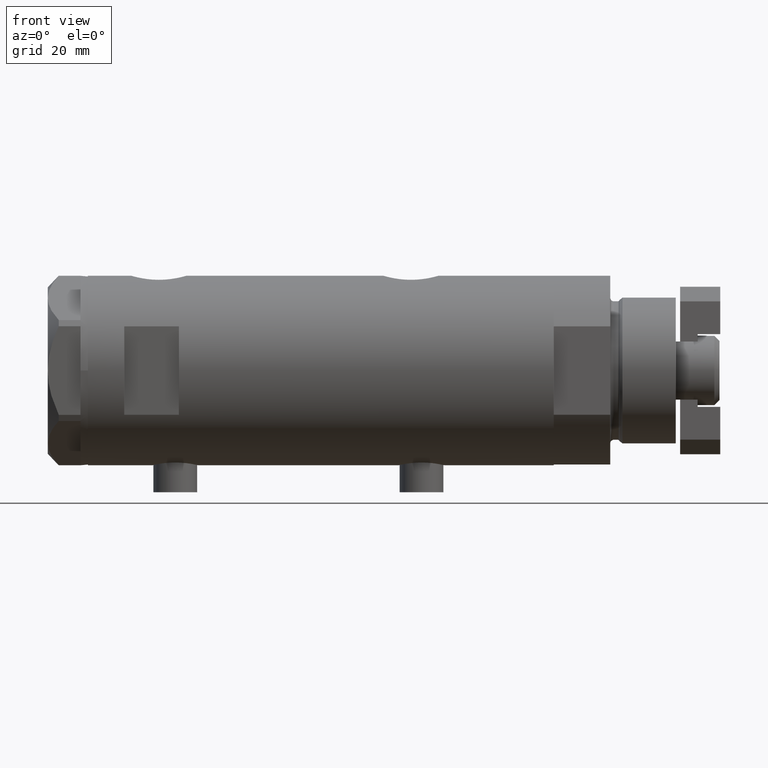
[diagram: clean part render]
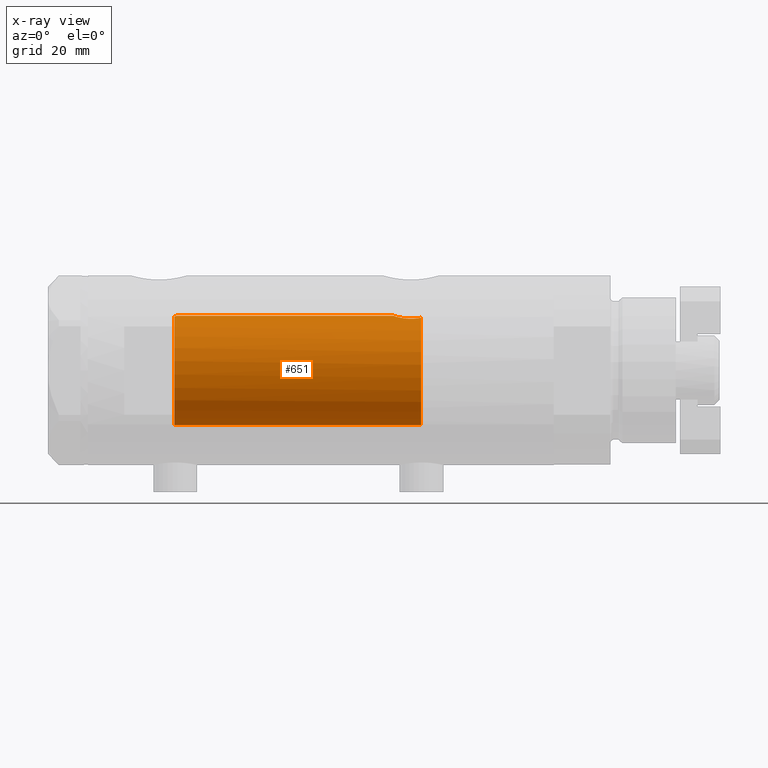
[diagram: x-ray — body ghosted, one internal face saturated and labeled with its STEP entity id]
A machine part, front view, then the same camera in x-ray: the body is ghosted and one INTERNAL B-rep face — a face not visible from any outside direction — is saturated and labeled: STEP entity #651.
In plain terms, the highlighted cylindrical surface (partial cylindrical patch) has radius 15 mm, axis along (1, 0, -0).
Its self-contained STEP definition (entity closure, byte-faithful):
#2 = CARTESIAN_POINT ( 'NONE',  ( 14.25856516724843814, -4.658255869285517825, -26.17044016644936733 ) ) ;
#73 = ORIENTED_EDGE ( 'NONE', *, *, #1847, .F. ) ;
#113 = CARTESIAN_POINT ( 'NONE',  ( 0.000000000000000000, 0.000000000000000000, 40.15000000000000568 ) ) ;
#173 = CARTESIAN_POINT ( 'NONE',  ( 15.00000000000000000, 0.000000000000000000, 39.58500000000000085 ) ) ;
#408 = CARTESIAN_POINT ( 'NONE',  ( 14.23846660849503465, -4.718934182878723682, -25.95401121469808459 ) ) ;
#491 = CARTESIAN_POINT ( 'NONE',  ( 14.99508877558422704, -0.4434836953032585405, -19.90007684727664028 ) ) ;
#517 = DIRECTION ( 'NONE',  ( 0.000000000000000000, 0.000000000000000000, 1.000000000000000000 ) ) ;
#651 = ADVANCED_FACE ( 'NONE', ( #4288 ), #1280, .F. ) ;
#802 = CARTESIAN_POINT ( 'NONE',  ( 14.42796883436190569, -4.108435602805831977, -22.10726922759031510 ) ) ;
#848 = CARTESIAN_POINT ( 'NONE',  ( 0.000000000000000000, 0.000000000000000000, 63.95000000000000995 ) ) ;
#858 = CARTESIAN_POINT ( 'NONE',  ( 14.72015646623405871, -2.909233045280604113, -20.82572079632733519 ) ) ;
#887 = DIRECTION ( 'NONE',  ( -0.000000000000000000, -0.000000000000000000, -1.000000000000000000 ) ) ;
#969 = CARTESIAN_POINT ( 'NONE',  ( 14.92029983160078466, -1.555365312915176323, 39.83609703141412695 ) ) ;
#1058 = ORIENTED_EDGE ( 'NONE', *, *, #3585, .T. ) ;
#1083 = B_SPLINE_CURVE_WITH_KNOTS ( 'NONE', 3,
 ( #173, #3105, #3588, #3639, #969, #1460, #2314, #4034 ),
 .UNSPECIFIED., .F., .F.,
 ( 4, 2, 2, 4 ),
 ( 2.641598245732904660E-19, 0.001182100180564266394, 0.001773150270846399592, 0.002364200361128532789 ),
 .UNSPECIFIED. ) ;
#1214 = VERTEX_POINT ( 'NONE', #5338 ) ;
#1235 = CARTESIAN_POINT ( 'NONE',  ( 14.25977760983849230, -4.654557688538887739, -23.31736805897653042 ) ) ;
#1280 = CYLINDRICAL_SURFACE ( 'NONE', #1766, 15.00000000000000000 ) ;
#1319 = CARTESIAN_POINT ( 'NONE',  ( 15.00000000000000000, 5.959273468635536151E-16, -19.88500000000000156 ) ) ;
#1320 = CARTESIAN_POINT ( 'NONE',  ( 14.46277203719950855, -3.978470183374505975, -27.55000000000000426 ) ) ;
#1333 = VERTEX_POINT ( 'NONE', #2609 ) ;
#1367 = CARTESIAN_POINT ( 'NONE',  ( 15.00000000000000000, 5.959273468635536151E-16, -19.88500000000000156 ) ) ;
#1460 = CARTESIAN_POINT ( 'NONE',  ( 14.87720562886504538, -1.924385875533401125, 39.97741675737692901 ) ) ;
#1561 = ORIENTED_EDGE ( 'NONE', *, *, #4989, .T. ) ;
#1629 = CARTESIAN_POINT ( 'NONE',  ( 15.00000000000000000, 1.836970198721029194E-15, 63.95000000000000995 ) ) ;
#1680 = EDGE_LOOP ( 'NONE', ( #4633, #1561, #73, #1058, #4095, #1821 ) ) ;
#1696 = CARTESIAN_POINT ( 'NONE',  ( 14.30602371879161439, -4.510400617436905790, -26.58665028800271557 ) ) ;
#1722 = VERTEX_POINT ( 'NONE', #2010 ) ;
#1753 = CARTESIAN_POINT ( 'NONE',  ( 14.46277203719950855, -3.978470183374505975, -27.55000000000000426 ) ) ;
#1766 = AXIS2_PLACEMENT_3D ( 'NONE', #848, #3832, #2565 ) ;
#1821 = ORIENTED_EDGE ( 'NONE', *, *, #1970, .T. ) ;
#1847 = EDGE_CURVE ( 'NONE', #3004, #2807, #2034, .T. ) ;
#1865 = AXIS2_PLACEMENT_3D ( 'NONE', #113, #517, #5333 ) ;
#1916 = EDGE_CURVE ( 'NONE', #1722, #5343, #1083, .T. ) ;
#1939 = DIRECTION ( 'NONE',  ( 0.000000000000000000, 0.000000000000000000, -1.000000000000000000 ) ) ;
#1970 = EDGE_CURVE ( 'NONE', #1214, #5343, #3037, .T. ) ;
#2010 = CARTESIAN_POINT ( 'NONE',  ( 15.00000000000000000, 0.000000000000000000, 39.58500000000000085 ) ) ;
#2034 = B_SPLINE_CURVE_WITH_KNOTS ( 'NONE', 3,
 ( #1753, #4323, #2548, #4294, #1696, #2, #408, #2154, #3383, #3923, #3415, #5136, #2233, #5109, #1235, #2971, #4687, #802, #3838, #5587, #858, #3049, #3899, #3470, #4271, #4764, #5558, #491, #5189, #1319 ),
 .UNSPECIFIED., .F., .F.,
 ( 4, 2, 2, 2, 2, 2, 2, 2, 2, 2, 2, 2, 2, 2, 4 ),
 ( 0.004672505804584291961, 0.005337629501999298885, 0.006002753199414305810, 0.006667876896829313602, 0.007333000594244319659, 0.007998124291659327451, 0.008663247989074335242, 0.009328371686489341300, 0.009993495383904347357, 0.01132374277873436988, 0.01265399017356439067, 0.01331911387097940366, 0.01398423756839441666, 0.01464936126580942966, 0.01531448496322444265 ),
 .UNSPECIFIED. ) ;
#2154 = CARTESIAN_POINT ( 'NONE',  ( 14.20819413761015326, -4.809312895991455505, -25.51713251522166104 ) ) ;
#2233 = CARTESIAN_POINT ( 'NONE',  ( 14.20926245015526135, -4.806160851464704287, -23.96377327795615031 ) ) ;
#2255 = CARTESIAN_POINT ( 'NONE',  ( 0.000000000000000000, 0.000000000000000000, -27.55000000000000426 ) ) ;
#2314 = CARTESIAN_POINT ( 'NONE',  ( 14.85289483991917336, -2.102865829523694607, 40.05860377881607093 ) ) ;
#2441 = CARTESIAN_POINT ( 'NONE',  ( 14.82638779339054480, -2.275571356824482638, 40.15000000000000568 ) ) ;
#2548 = CARTESIAN_POINT ( 'NONE',  ( 14.39424372609267522, -4.221002267729139668, -27.17893131093289938 ) ) ;
#2565 = DIRECTION ( 'NONE',  ( -1.000000000000000000, 0.000000000000000000, 0.000000000000000000 ) ) ;
#2609 = CARTESIAN_POINT ( 'NONE',  ( -15.00000000000000000, 0.000000000000000000, -27.55000000000000426 ) ) ;
#2624 = VECTOR ( 'NONE', #887, 1000.000000000000000 ) ;
#2807 = VERTEX_POINT ( 'NONE', #1367 ) ;
#2971 = CARTESIAN_POINT ( 'NONE',  ( 14.30772250772360188, -4.505024017690379523, -22.90010806953218037 ) ) ;
#3004 = VERTEX_POINT ( 'NONE', #1320 ) ;
#3037 = CIRCLE ( 'NONE', #1865, 15.00000000000000000 ) ;
#3049 = CARTESIAN_POINT ( 'NONE',  ( 14.81710879718117724, -2.343063746046469387, -20.48067662538953471 ) ) ;
#3075 = VECTOR ( 'NONE', #5044, 1000.000000000000000 ) ;
#3105 = CARTESIAN_POINT ( 'NONE',  ( 15.00000000000000178, -0.3999014018875941545, 39.58500000000000085 ) ) ;
#3383 = CARTESIAN_POINT ( 'NONE',  ( 14.19797987272029438, -4.839174951492910104, -25.29741451501410765 ) ) ;
#3415 = CARTESIAN_POINT ( 'NONE',  ( 14.18786347641749757, -4.868757996482117711, -24.63322300400293230 ) ) ;
#3470 = CARTESIAN_POINT ( 'NONE',  ( 14.90017778876745069, -1.739641523727900596, -20.20130925695125867 ) ) ;
#3585 = EDGE_CURVE ( 'NONE', #3004, #1333, #5508, .T. ) ;
#3588 = CARTESIAN_POINT ( 'NONE',  ( 14.98404828787190191, -0.7909490205761877668, 39.63356230794191504 ) ) ;
#3639 = CARTESIAN_POINT ( 'NONE',  ( 14.93900636919599911, -1.364886281976677163, 39.77622504971314044 ) ) ;
#3832 = DIRECTION ( 'NONE',  ( -0.000000000000000000, -0.000000000000000000, -1.000000000000000000 ) ) ;
#3838 = CARTESIAN_POINT ( 'NONE',  ( 14.49994286062941207, -3.853373987417221702, -21.74743896782911534 ) ) ;
#3899 = CARTESIAN_POINT ( 'NONE',  ( 14.84733308118440398, -2.144376633039214219, -20.37751912952715472 ) ) ;
#3923 = CARTESIAN_POINT ( 'NONE',  ( 14.18781489734108270, -4.868896704194245473, -24.85545969036061464 ) ) ;
#4034 = CARTESIAN_POINT ( 'NONE',  ( 14.82638779339054480, -2.275571356824482638, 40.15000000000000568 ) ) ;
#4095 = ORIENTED_EDGE ( 'NONE', *, *, #4849, .F. ) ;
#4271 = CARTESIAN_POINT ( 'NONE',  ( 14.92307637240703677, -1.532123959568890248, -20.12726557582076126 ) ) ;
#4288 = FACE_OUTER_BOUND ( 'NONE', #1680, .T. ) ;
#4294 = CARTESIAN_POINT ( 'NONE',  ( 14.33349657381506681, -4.422893686125039636, -26.78827841538882737 ) ) ;
#4323 = CARTESIAN_POINT ( 'NONE',  ( 14.42775250319760083, -4.105775281508736718, -27.36911445102908758 ) ) ;
#4540 = LINE ( 'NONE', #5383, #2624 ) ;
#4633 = ORIENTED_EDGE ( 'NONE', *, *, #1916, .F. ) ;
#4687 = CARTESIAN_POINT ( 'NONE',  ( 14.33594561531103473, -4.414979644548147952, -22.69453393419243525 ) ) ;
#4764 = CARTESIAN_POINT ( 'NONE',  ( 14.96064712090283777, -1.106639041422191605, -20.00738179736371336 ) ) ;
#4817 = DIRECTION ( 'NONE',  ( -1.000000000000000000, 0.000000000000000000, 0.000000000000000000 ) ) ;
#4849 = EDGE_CURVE ( 'NONE', #1214, #1333, #4540, .T. ) ;
#4870 = AXIS2_PLACEMENT_3D ( 'NONE', #2255, #1939, #4817 ) ;
#4989 = EDGE_CURVE ( 'NONE', #1722, #2807, #5073, .T. ) ;
#5044 = DIRECTION ( 'NONE',  ( -0.000000000000000000, -0.000000000000000000, -1.000000000000000000 ) ) ;
#5073 = LINE ( 'NONE', #1629, #3075 ) ;
#5109 = CARTESIAN_POINT ( 'NONE',  ( 14.23984499268010673, -4.714778477509576682, -23.53008258614764614 ) ) ;
#5136 = CARTESIAN_POINT ( 'NONE',  ( 14.19858338301463085, -4.837406781463695182, -24.18614104090498884 ) ) ;
#5189 = CARTESIAN_POINT ( 'NONE',  ( 15.00000000000000000, -0.2216692655473424256, -19.88499999999999801 ) ) ;
#5333 = DIRECTION ( 'NONE',  ( 1.000000000000000000, 0.000000000000000000, 0.000000000000000000 ) ) ;
#5338 = CARTESIAN_POINT ( 'NONE',  ( -15.00000000000000000, 0.000000000000000000, 40.15000000000000568 ) ) ;
#5343 = VERTEX_POINT ( 'NONE', #2441 ) ;
#5383 = CARTESIAN_POINT ( 'NONE',  ( -15.00000000000000000, 0.000000000000000000, 63.95000000000000995 ) ) ;
#5508 = CIRCLE ( 'NONE', #4870, 15.00000000000000000 ) ;
#5558 = CARTESIAN_POINT ( 'NONE',  ( 14.97537530859971966, -0.8874117095427782598, -19.96137464055827948 ) ) ;
#5587 = CARTESIAN_POINT ( 'NONE',  ( 14.64727859494137263, -3.248701865452403581, -21.10174013696654782 ) ) ;